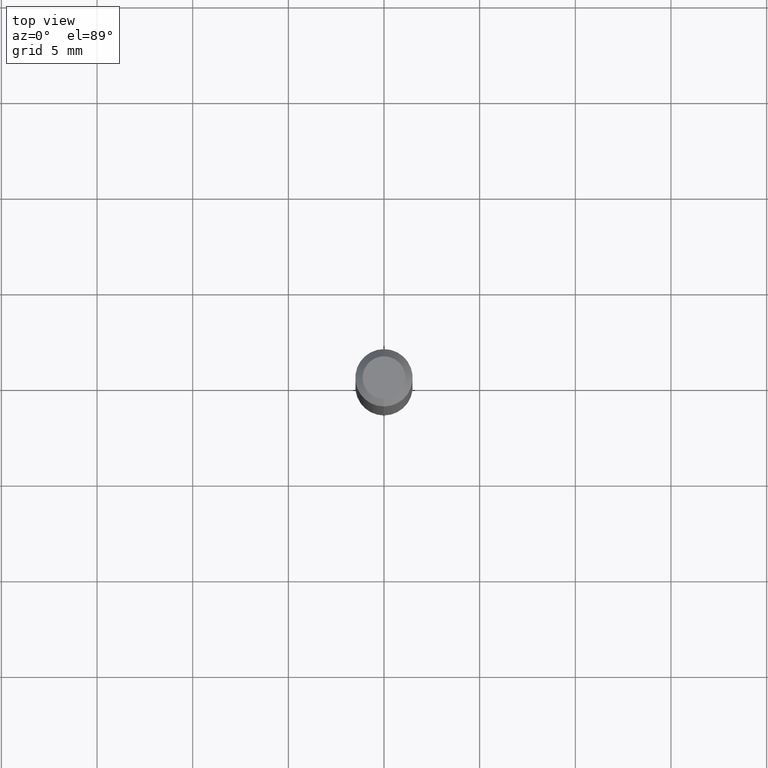
[diagram: clean part render]
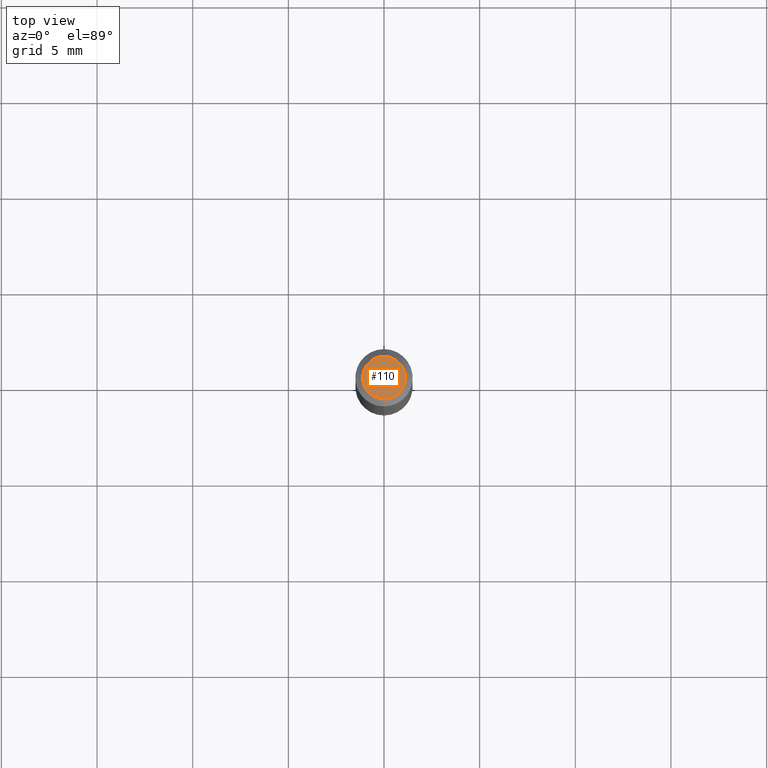
[diagram: same view with one face highlighted and labeled with its STEP entity id]
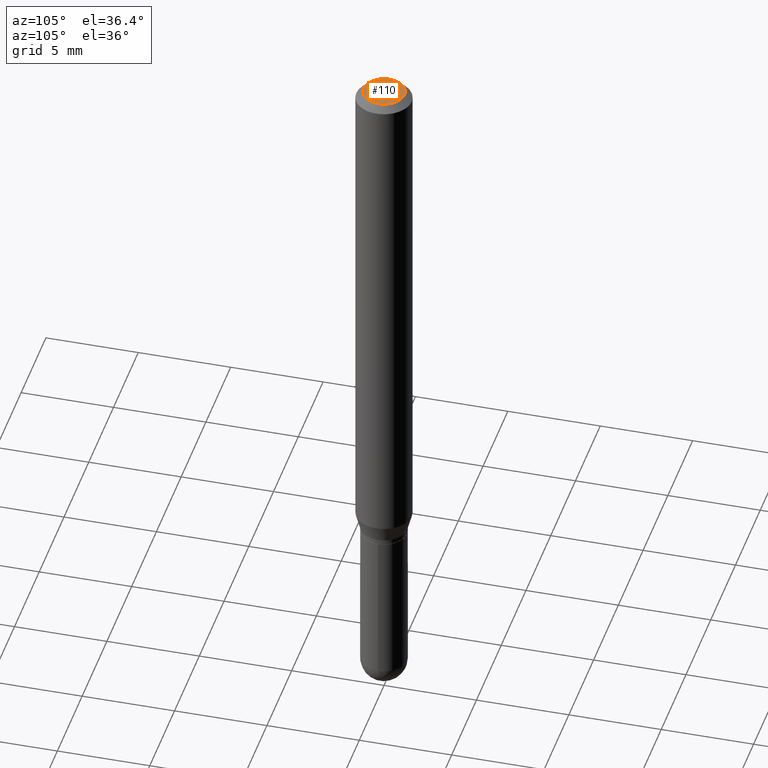
[diagram: same view with one face highlighted and labeled with its STEP entity id]
A machine part, top view. The second image highlights one B-rep face of the part: STEP entity #110.
A second angle (auxiliary view) of the same face is appended — the face is thin or edge-on in the first view.
In plain terms, the highlighted planar face has unit normal (0, -0, -1).
Its self-contained STEP definition (entity closure, byte-faithful):
#106 = DIRECTION ( 'NONE',  ( -6.982962677686265133E-15, -1.000000000000000000, 3.491296770250663257E-15 ) ) ;
#110 = ADVANCED_FACE ( 'NONE', ( #319 ), #437, .F. ) ;
#123 = CARTESIAN_POINT ( 'NONE',  ( 3.599717260347272986E-16, 0.04405000000000000582, -1.157268264087792493E-16 ) ) ;
#146 = ORIENTED_EDGE ( 'NONE', *, *, #434, .T. ) ;
#179 = CARTESIAN_POINT ( 'NONE',  ( -9.309117794264846291E-46, 1.328955004549274843E-31, 3.806479632076250738E-17 ) ) ;
#212 = VERTEX_POINT ( 'NONE', #123 ) ;
#240 = AXIS2_PLACEMENT_3D ( 'NONE', #460, #289, #295 ) ;
#278 = DIRECTION ( 'NONE',  ( 6.982962677686265922E-15, 1.000000000000000000, -3.491296770250663257E-15 ) ) ;
#280 = AXIS2_PLACEMENT_3D ( 'NONE', #446, #316, #278 ) ;
#286 = AXIS2_PLACEMENT_3D ( 'NONE', #179, #458, #106 ) ;
#289 = DIRECTION ( 'NONE',  ( -2.445597689744413996E-29, 3.491296770250663651E-15, 1.000000000000000000 ) ) ;
#295 = DIRECTION ( 'NONE',  ( -6.982962677686265133E-15, -1.000000000000000000, 3.491296770250663257E-15 ) ) ;
#296 = ORIENTED_EDGE ( 'NONE', *, *, #366, .T. ) ;
#306 = VERTEX_POINT ( 'NONE', #432 ) ;
#316 = DIRECTION ( 'NONE',  ( 2.445597689744413996E-29, -3.491296770250663257E-15, -1.000000000000000000 ) ) ;
#319 = FACE_OUTER_BOUND ( 'NONE', #508, .T. ) ;
#366 = EDGE_CURVE ( 'NONE', #212, #306, #473, .T. ) ;
#432 = CARTESIAN_POINT ( 'NONE',  ( -3.536586717851222711E-16, -0.04405000000000000582, 1.918564190503043134E-16 ) ) ;
#434 = EDGE_CURVE ( 'NONE', #306, #212, #482, .T. ) ;
#437 = PLANE ( 'NONE',  #280 ) ;
#446 = CARTESIAN_POINT ( 'NONE',  ( 3.075995059520800222E-16, 0.04405000000000000582, -1.347592245691604969E-16 ) ) ;
#458 = DIRECTION ( 'NONE',  ( -2.445597689744413996E-29, 3.491296770250663651E-15, 1.000000000000000000 ) ) ;
#460 = CARTESIAN_POINT ( 'NONE',  ( -9.309117794264846291E-46, 1.328955004549274843E-31, 3.806479632076250738E-17 ) ) ;
#473 = CIRCLE ( 'NONE', #240, 0.04405000000000000582 ) ;
#482 = CIRCLE ( 'NONE', #286, 0.04405000000000000582 ) ;
#508 = EDGE_LOOP ( 'NONE', ( #296, #146 ) ) ;